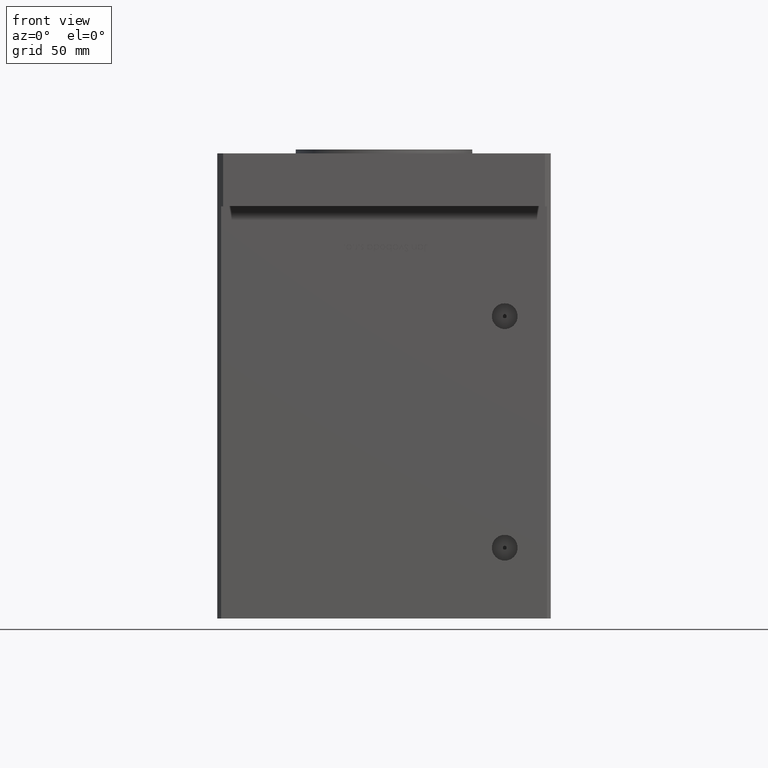
[diagram: clean part render]
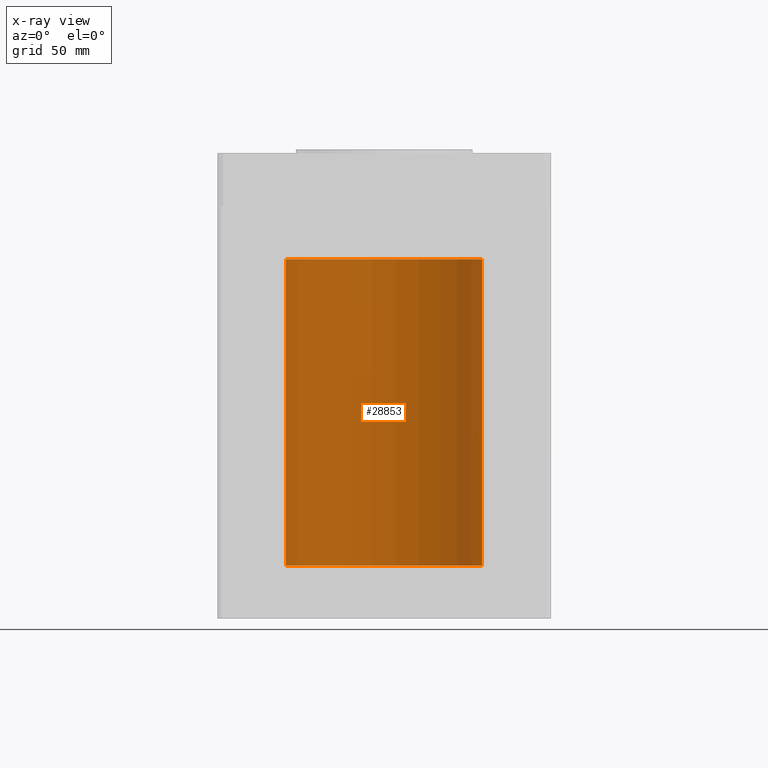
[diagram: x-ray — body ghosted, one internal face saturated and labeled with its STEP entity id]
A machine part, front view, then the same camera in x-ray: the body is ghosted and one INTERNAL B-rep face — a face not visible from any outside direction — is saturated and labeled: STEP entity #28853.
In plain terms, the highlighted cylindrical surface (partial cylindrical patch) has radius 50 mm, axis along (-0, -0, -1).
Its self-contained STEP definition (entity closure, byte-faithful):
#43 = VECTOR ( 'NONE', #10675, 1000.000000000000000 ) ;
#1287 = DIRECTION ( 'NONE',  ( 1.000000000000000000, 0.000000000000000000, 0.000000000000000000 ) ) ;
#1955 = DIRECTION ( 'NONE',  ( -0.000000000000000000, 0.000000000000000000, 1.000000000000000000 ) ) ;
#6091 = LINE ( 'NONE', #52102, #43 ) ;
#6300 = EDGE_CURVE ( 'NONE', #30731, #41142, #11089, .T. ) ;
#9145 = DIRECTION ( 'NONE',  ( -0.000000000000000000, 0.000000000000000000, 1.000000000000000000 ) ) ;
#9302 = AXIS2_PLACEMENT_3D ( 'NONE', #39041, #1955, #43641 ) ;
#10675 = DIRECTION ( 'NONE',  ( -0.000000000000000000, -0.000000000000000000, -1.000000000000000000 ) ) ;
#10895 = DIRECTION ( 'NONE',  ( -0.000000000000000000, -0.000000000000000000, -1.000000000000000000 ) ) ;
#11089 = LINE ( 'NONE', #36002, #11622 ) ;
#11622 = VECTOR ( 'NONE', #31950, 1000.000000000000000 ) ;
#14618 = EDGE_CURVE ( 'NONE', #41142, #47254, #40375, .T. ) ;
#15755 = CARTESIAN_POINT ( 'NONE',  ( 50.00000000000000000, 6.123233995736766085E-15, 156.0000000000000000 ) ) ;
#17292 = EDGE_CURVE ( 'NONE', #30731, #17708, #24019, .T. ) ;
#17708 = VERTEX_POINT ( 'NONE', #30571 ) ;
#19286 = DIRECTION ( 'NONE',  ( -1.000000000000000000, 0.000000000000000000, 0.000000000000000000 ) ) ;
#22386 = CARTESIAN_POINT ( 'NONE',  ( 0.000000000000000000, 0.000000000000000000, 156.0000000000000000 ) ) ;
#22827 = CARTESIAN_POINT ( 'NONE',  ( 50.00000000000000000, 6.123233995736766085E-15, 0.000000000000000000 ) ) ;
#23404 = ORIENTED_EDGE ( 'NONE', *, *, #14618, .F. ) ;
#24019 = CIRCLE ( 'NONE', #46539, 50.00000000000000000 ) ;
#24658 = CARTESIAN_POINT ( 'NONE',  ( -50.00000000000000000, 0.000000000000000000, 0.000000000000000000 ) ) ;
#25082 = ORIENTED_EDGE ( 'NONE', *, *, #47870, .T. ) ;
#27810 = ORIENTED_EDGE ( 'NONE', *, *, #6300, .F. ) ;
#28583 = AXIS2_PLACEMENT_3D ( 'NONE', #38798, #10895, #19286 ) ;
#28853 = ADVANCED_FACE ( 'NONE', ( #31221 ), #48001, .F. ) ;
#30059 = EDGE_LOOP ( 'NONE', ( #27810, #43788, #25082, #23404 ) ) ;
#30571 = CARTESIAN_POINT ( 'NONE',  ( -50.00000000000000000, 0.000000000000000000, 156.0000000000000000 ) ) ;
#30731 = VERTEX_POINT ( 'NONE', #15755 ) ;
#31221 = FACE_OUTER_BOUND ( 'NONE', #30059, .T. ) ;
#31950 = DIRECTION ( 'NONE',  ( -0.000000000000000000, -0.000000000000000000, -1.000000000000000000 ) ) ;
#36002 = CARTESIAN_POINT ( 'NONE',  ( 50.00000000000000000, 6.123233995736766085E-15, 156.0000000000000000 ) ) ;
#38798 = CARTESIAN_POINT ( 'NONE',  ( 0.000000000000000000, 0.000000000000000000, 156.0000000000000000 ) ) ;
#39041 = CARTESIAN_POINT ( 'NONE',  ( 0.000000000000000000, 0.000000000000000000, 0.000000000000000000 ) ) ;
#40375 = CIRCLE ( 'NONE', #9302, 50.00000000000000000 ) ;
#41142 = VERTEX_POINT ( 'NONE', #22827 ) ;
#43641 = DIRECTION ( 'NONE',  ( 1.000000000000000000, 0.000000000000000000, 0.000000000000000000 ) ) ;
#43788 = ORIENTED_EDGE ( 'NONE', *, *, #17292, .T. ) ;
#46539 = AXIS2_PLACEMENT_3D ( 'NONE', #22386, #9145, #1287 ) ;
#47254 = VERTEX_POINT ( 'NONE', #24658 ) ;
#47870 = EDGE_CURVE ( 'NONE', #17708, #47254, #6091, .T. ) ;
#48001 = CYLINDRICAL_SURFACE ( 'NONE', #28583, 50.00000000000000000 ) ;
#52102 = CARTESIAN_POINT ( 'NONE',  ( -50.00000000000000000, 0.000000000000000000, 156.0000000000000000 ) ) ;